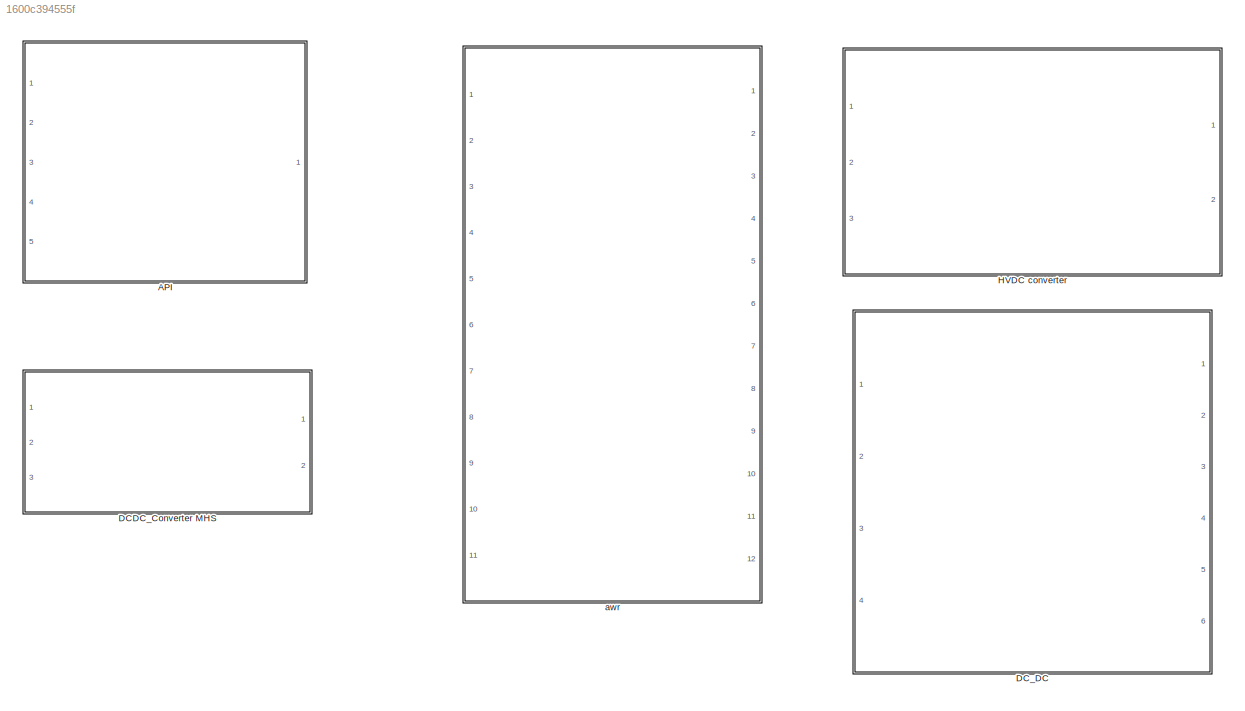
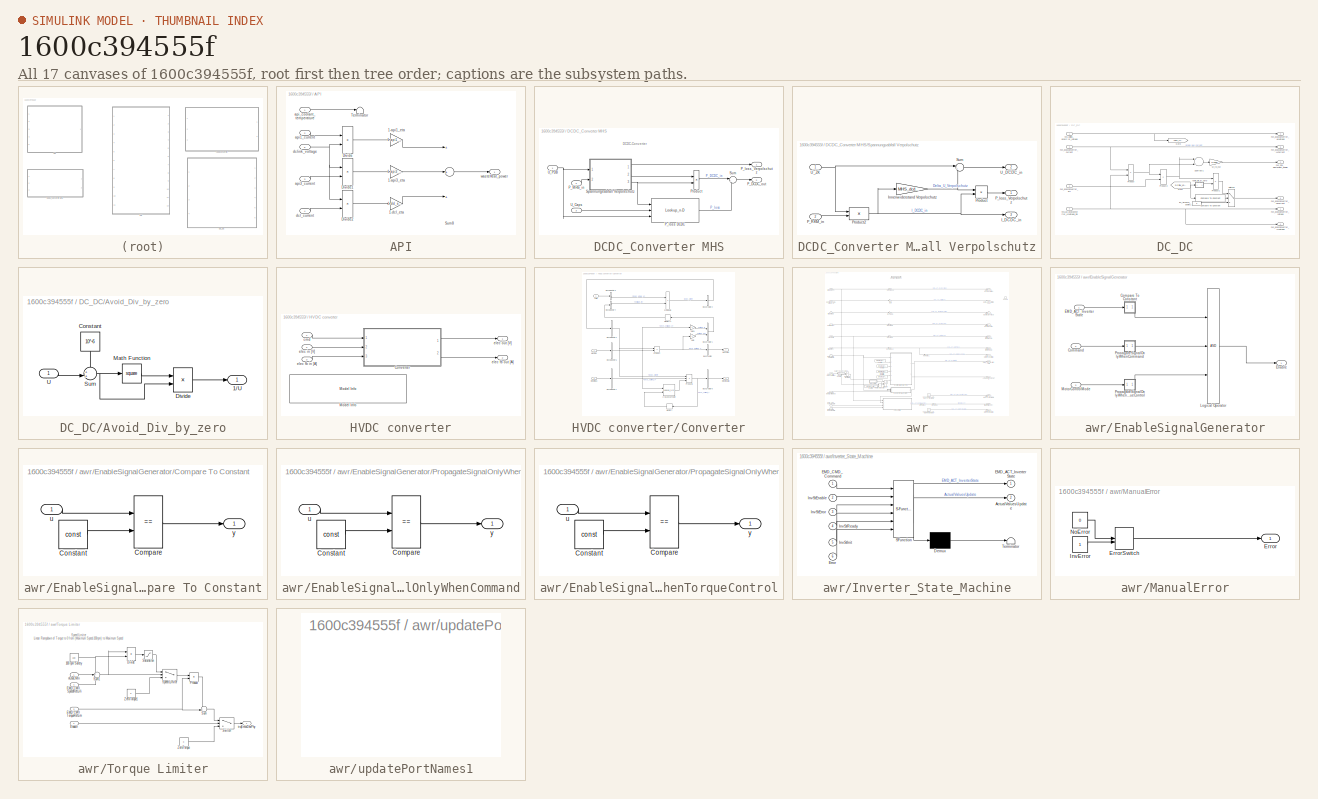
[diagram: thumbnail index - all 17 canvases of the model, root first then tree order]
MODEL slx_1600c394555f
KIND library
CONFIG AbsTol = auto
CONFIG FixedStep = 0.001
CONFIG MaxStep = auto
CONFIG MinStep = auto
CONFIG RelTol = 1e-3
CONFIG SampleTimeConstraint = Unconstrained
CONFIG Solver = ode1
CONFIG SolverMode = Auto
CONFIG SolverName = ode1
CONFIG StartTime = 0.0
CONFIG StopTime = Inf
BLOCK [SubSystem] API
  AncestorBlock = API12_DCL/API1+API3+DCL1
  Ports = [5, 1]
  RequestExecContextInheritance = off
  Variant = off
BLOCK [Gain] API/1-api1_eta
  Gain = 1-api1_eta
  OutDataTypeStr = Inherit: Inherit via internal rule
  ParamDataTypeStr = Inherit: Inherit via internal rule
  SaturateOnIntegerOverflow = off
BLOCK [Gain] API/1-api3_eta
  Gain = 1-api3_eta
  OutDataTypeStr = Inherit: Inherit via internal rule
  ParamDataTypeStr = Inherit: Inherit via internal rule
  SaturateOnIntegerOverflow = off
BLOCK [Gain] API/1-dcl_eta
  Gain = 1-dcl_eta
  OutDataTypeStr = Inherit: Inherit via internal rule
  ParamDataTypeStr = Inherit: Inherit via internal rule
  SaturateOnIntegerOverflow = off
BLOCK [Product] API/Divide
  InputSameDT = off
  Inputs = **
  OutDataTypeStr = Inherit: Inherit via internal rule
  Ports = [2, 1]
  RndMeth = Floor
  SaturateOnIntegerOverflow = off
BLOCK [Product] API/Divide1
  InputSameDT = off
  Inputs = **
  OutDataTypeStr = Inherit: Inherit via internal rule
  Ports = [2, 1]
  RndMeth = Floor
  SaturateOnIntegerOverflow = off
BLOCK [Product] API/Divide2
  InputSameDT = off
  Inputs = **
  OutDataTypeStr = Inherit: Inherit via internal rule
  Ports = [2, 1]
  RndMeth = Floor
  SaturateOnIntegerOverflow = off
BLOCK [Sum] API/Sum8
  Inputs = +++
  Ports = [3, 1]
BLOCK [Terminator] API/Terminator
BLOCK [Inport] API/api1_current
  IconDisplay = Port number
  Port = 2
BLOCK [Inport] API/api3_current
  IconDisplay = Port number
  Port = 3
BLOCK [Inport] API/api_coolant_temperature
  IconDisplay = Port number
BLOCK [Inport] API/dcl_current
  IconDisplay = Port number
  Port = 4
BLOCK [Inport] API/dclink_voltage
  IconDisplay = Port number
  Port = 5
BLOCK [Outport] API/wasteHeat_power
  IconDisplay = Port number
BLOCK [SubSystem] DCDC_Converter MHS
  Ports = [3, 2]
  RequestExecContextInheritance = off
  Variant = off
BLOCK [Outport] DCDC_Converter MHS/P_DCDC_out
  IconDisplay = Port number
  Port = 2
BLOCK [Inport] DCDC_Converter MHS/P_MHS_in
  IconDisplay = Port number
  Port = 2
BLOCK [Lookup_n-D] DCDC_Converter MHS/P_loss DCDC
  BreakpointsForDimension1 = MHS_dcdc_I_ZK
  BreakpointsForDimension2 = MHS_dcdc_U_Cap
  BreakpointsForDimension3 = MHS_dcdc_U_ZK
  NumberOfTableDimensions = 3
  Ports = [3, 1]
  RndMeth = Simplest
  Table = MHS_dcdc_Ploss
BLOCK [Outport] DCDC_Converter MHS/P_loss_Verpolschutz
  IconDisplay = Port number
BLOCK [Product] DCDC_Converter MHS/Product
  InputSameDT = off
  OutDataTypeStr = Inherit: Inherit via internal rule
  Ports = [2, 1]
  SaturateOnIntegerOverflow = off
BLOCK [SubSystem] DCDC_Converter MHS/Spannungsabfall Verpolschutz
  Ports = [2, 3]
  RequestExecContextInheritance = off
  Variant = off
BLOCK [Outport] DCDC_Converter MHS/Spannungsabfall Verpolschutz/I_DCDC_in
  IconDisplay = Port number
  Port = 3
BLOCK [Gain] DCDC_Converter MHS/Spannungsabfall Verpolschutz/Innenwiderstand Verpolschutz
  Gain = MHS_dcdc_Ri_Verpolschutz
  OutDataTypeStr = Inherit: Inherit via internal rule
  ParamDataTypeStr = Inherit: Inherit via internal rule
  SaturateOnIntegerOverflow = off
BLOCK [Inport] DCDC_Converter MHS/Spannungsabfall Verpolschutz/P_RKM_in
  IconDisplay = Port number
  Port = 2
BLOCK [Outport] DCDC_Converter MHS/Spannungsabfall Verpolschutz/P_loss_Verpolschutz
  IconDisplay = Port number
BLOCK [Product] DCDC_Converter MHS/Spannungsabfall Verpolschutz/Product
  InputSameDT = off
  OutDataTypeStr = Inherit: Inherit via internal rule
  Ports = [2, 1]
  SaturateOnIntegerOverflow = off
BLOCK [Product] DCDC_Converter MHS/Spannungsabfall Verpolschutz/Product2
  InputSameDT = off
  Inputs = /*
  OutDataTypeStr = Inherit: Inherit via internal rule
  Ports = [2, 1]
  SaturateOnIntegerOverflow = off
BLOCK [Sum] DCDC_Converter MHS/Spannungsabfall Verpolschutz/Sum
  IconShape = round
  InputSameDT = off
  Inputs = |+-
  OutDataTypeStr = Inherit: Inherit via internal rule
  Ports = [2, 1]
  SaturateOnIntegerOverflow = off
BLOCK [Outport] DCDC_Converter MHS/Spannungsabfall Verpolschutz/U_DCDC_in
  IconDisplay = Port number
  Port = 2
BLOCK [Inport] DCDC_Converter MHS/Spannungsabfall Verpolschutz/U_ZK
  IconDisplay = Port number
BLOCK [Sum] DCDC_Converter MHS/Sum
  IconShape = round
  InputSameDT = off
  Inputs = |+-
  OutDataTypeStr = Inherit: Inherit via internal rule
  Ports = [2, 1]
  SaturateOnIntegerOverflow = off
BLOCK [Inport] DCDC_Converter MHS/U_Caps
  IconDisplay = Port number
  Port = 3
BLOCK [Inport] DCDC_Converter MHS/U_PDB
  IconDisplay = Port number
BLOCK [SubSystem] DC_DC
  Ports = [4, 6]
  RequestExecContextInheritance = off
  Variant = off
BLOCK [SubSystem] DC_DC/Avoid_Div_by_zero
  Ports = [1, 1]
  RequestExecContextInheritance = off
  Variant = off
BLOCK [Outport] DC_DC/Avoid_Div_by_zero/1//U
  IconDisplay = Port number
BLOCK [Constant] DC_DC/Avoid_Div_by_zero/Constant
  Value = 10^-6
BLOCK [Product] DC_DC/Avoid_Div_by_zero/Divide
  InputSameDT = off
  Inputs = /*
  OutDataTypeStr = Inherit: Inherit via internal rule
  Ports = [2, 1]
  RndMeth = Floor
  SaturateOnIntegerOverflow = off
BLOCK [Math] DC_DC/Avoid_Div_by_zero/Math Function
  Operator = square
  Ports = [1, 1]
BLOCK [Sum] DC_DC/Avoid_Div_by_zero/Sum
  IconShape = round
  InputSameDT = off
  Inputs = ++|
  OutDataTypeStr = Inherit: Inherit via internal rule
  Ports = [2, 1]
  SaturateOnIntegerOverflow = off
BLOCK [Inport] DC_DC/Avoid_Div_by_zero/U
  IconDisplay = Port number
BLOCK [Reference] DC_DC/Compare To Constant  REF=simulink/Logic and Bit
Operations/Compare
To Constant
  Ports = [1, 1]
  SourceBlock = simulink/Logic and Bit\nOperations/Compare\nTo Constant
  SourceType = Compare To Constant
BLOCK [From] DC_DC/From
  GotoTag = DClink_voltage
BLOCK [Goto] DC_DC/Goto
  GotoTag = DClink_voltage
BLOCK [Product] DC_DC/Product
  InputSameDT = off
  Inputs = **
  OutDataTypeStr = Inherit: Inherit via internal rule
  Ports = [2, 1]
  SaturateOnIntegerOverflow = off
BLOCK [Product] DC_DC/Product1
  InputSameDT = off
  Inputs = **
  OutDataTypeStr = Inherit: Inherit via internal rule
  Ports = [2, 1]
  SaturateOnIntegerOverflow = off
BLOCK [Product] DC_DC/Product2
  InputSameDT = off
  Inputs = */
  OutDataTypeStr = Inherit: Inherit via internal rule
  Ports = [2, 1]
  SaturateOnIntegerOverflow = off
BLOCK [Sum] DC_DC/Subtract1
  InputSameDT = off
  Inputs = +-
  OutDataTypeStr = Inherit: Inherit via internal rule
  Ports = [2, 1]
  SaturateOnIntegerOverflow = off
BLOCK [Switch] DC_DC/Switch2
  InputSameDT = off
  SaturateOnIntegerOverflow = off
  Threshold = 0.5
BLOCK [Gain] DC_DC/W_to_kW
  AttributesFormatString = %<Description>
  Gain = 1/1000
  OutDataTypeStr = Inherit: Inherit via internal rule
  ParamDataTypeStr = Inherit: Inherit via internal rule
  SaturateOnIntegerOverflow = off
BLOCK [Inport] DC_DC/hvsAux_dcdcConverter_LvVoltage_Rq
  IconDisplay = Port number
  Port = 4
BLOCK [Outport] DC_DC/hvs_DCL_wasteHeat_power
  IconDisplay = Port number
  Port = 2
BLOCK [Inport] DC_DC/hvs_DClink_dcdcConverter_voltage
  IconDisplay = Port number
BLOCK [Outport] DC_DC/hvs_dcdcConverter_HvCurrent
  IconDisplay = Port number
  Port = 5
BLOCK [Outport] DC_DC/hvs_dcdcConverter_HvVoltage
  IconDisplay = Port number
  Port = 3
BLOCK [Outport] DC_DC/hvs_dcdcConverter_LvCurrent
  IconDisplay = Port number
  Port = 6
BLOCK [Outport] DC_DC/hvs_dcdcConverter_LvVoltage
  IconDisplay = Port number
  Port = 4
BLOCK [Inport] DC_DC/hvs_dcdcConverter_current
  IconDisplay = Port number
  Port = 3
BLOCK [Inport] DC_DC/hvs_dcdcConverter_eff
  IconDisplay = Port number
  Port = 2
BLOCK [Outport] DC_DC/hvs_dcdcConverter_voltage
  IconDisplay = Port number
BLOCK [Constant] DC_DC/lvs_Aircomp_power1
  Value = 0
BLOCK [SubSystem] HVDC converter
  Ports = [3, 2]
  RequestExecContextInheritance = off
  Variant = off
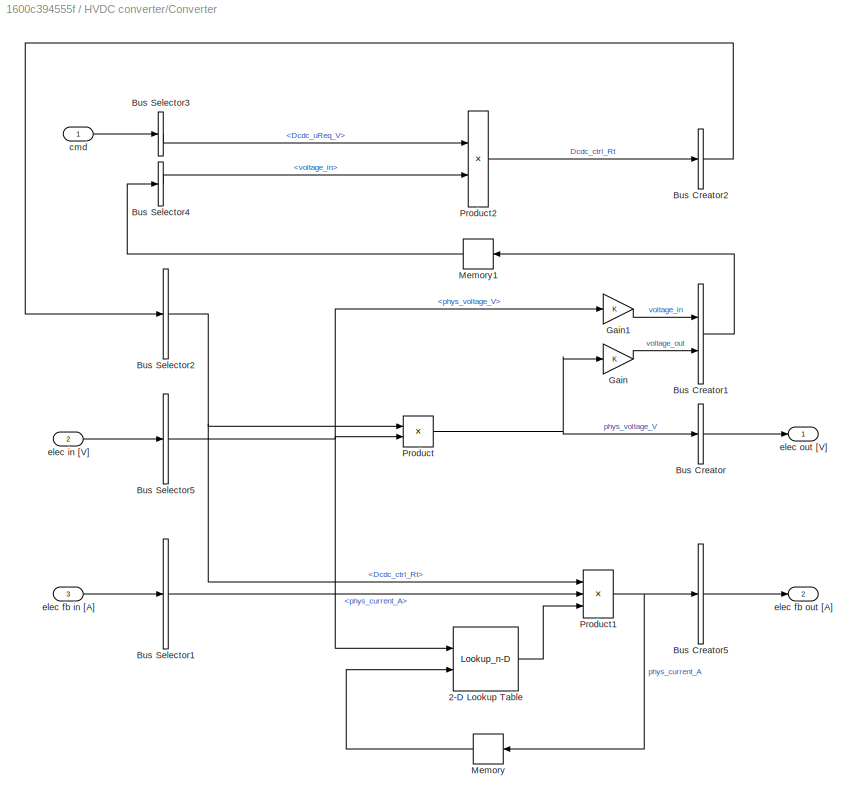
BLOCK [SubSystem] HVDC converter/Converter
  Ports = [3, 2]
  RequestExecContextInheritance = off
  Variant = off
BLOCK [Lookup_n-D] HVDC converter/Converter/2-D Lookup Table
  BreakpointsForDimension1 = dat.elecefficiency.voltage.vec
  BreakpointsForDimension2 = dat.elecefficiency.current.vec
  ExtrapMethod = Clip
  Ports = [2, 1]
  Table = dat.elecefficiency.efficiency.map
  UseLastTableValue = on
BLOCK [BusCreator] HVDC converter/Converter/Bus Creator
  DisplayOption = bar
  InheritFromInputs = on
  Inputs = 1
  Ports = [1, 1]
BLOCK [BusCreator] HVDC converter/Converter/Bus Creator1
  DisplayOption = bar
  InheritFromInputs = on
  Inputs = 2
  Ports = [2, 1]
BLOCK [BusCreator] HVDC converter/Converter/Bus Creator2
  DisplayOption = bar
  InheritFromInputs = on
  Inputs = 1
  Ports = [1, 1]
BLOCK [BusCreator] HVDC converter/Converter/Bus Creator5
  DisplayOption = bar
  InheritFromInputs = on
  Inputs = 1
  Ports = [1, 1]
BLOCK [BusSelector] HVDC converter/Converter/Bus Selector1
  OutputSignals = phys_current_A
  Ports = [1, 1]
BLOCK [BusSelector] HVDC converter/Converter/Bus Selector2
  OutputSignals = Dcdc_ctrl_Rt
  Ports = [1, 1]
BLOCK [BusSelector] HVDC converter/Converter/Bus Selector3
  OutputSignals = Dcdc_uReq_V
  Ports = [1, 1]
BLOCK [BusSelector] HVDC converter/Converter/Bus Selector4
  OutputSignals = voltage_in
  Ports = [1, 1]
BLOCK [BusSelector] HVDC converter/Converter/Bus Selector5
  OutputSignals = phys_voltage_V
  Ports = [1, 1]
BLOCK [Gain] HVDC converter/Converter/Gain
  OutDataTypeStr = Inherit: Inherit via internal rule
  ParamDataTypeStr = Inherit: Inherit via internal rule
  SaturateOnIntegerOverflow = off
BLOCK [Gain] HVDC converter/Converter/Gain1
  OutDataTypeStr = Inherit: Inherit via internal rule
  ParamDataTypeStr = Inherit: Inherit via internal rule
  SaturateOnIntegerOverflow = off
BLOCK [Memory] HVDC converter/Converter/Memory
BLOCK [Memory] HVDC converter/Converter/Memory1
BLOCK [Product] HVDC converter/Converter/Product
  InputSameDT = off
  OutDataTypeStr = Inherit: Inherit via internal rule
  Ports = [2, 1]
  SaturateOnIntegerOverflow = off
BLOCK [Product] HVDC converter/Converter/Product1
  InputSameDT = off
  Inputs = 3
  OutDataTypeStr = Inherit: Inherit via internal rule
  Ports = [3, 1]
  SaturateOnIntegerOverflow = off
BLOCK [Product] HVDC converter/Converter/Product2
  InputSameDT = off
  Inputs = */
  OutDataTypeStr = Inherit: Inherit via internal rule
  Ports = [2, 1]
  SaturateOnIntegerOverflow = off
BLOCK [Inport] HVDC converter/Converter/cmd
  IconDisplay = Port number
BLOCK [Inport] HVDC converter/Converter/elec fb in [A]
  IconDisplay = Port number
  Port = 3
BLOCK [Outport] HVDC converter/Converter/elec fb out [A]
  IconDisplay = Port number
  Port = 2
BLOCK [Inport] HVDC converter/Converter/elec in [V]
  IconDisplay = Port number
  Port = 2
BLOCK [Outport] HVDC converter/Converter/elec out [V]
  IconDisplay = Port number
BLOCK [Reference] HVDC converter/Model Info  REF=simulink/Model-Wide
Utilities/Model Info
  Ports = []
  SourceBlock = simulink/Model-Wide\nUtilities/Model Info
  SourceType = CMBlock
BLOCK [Inport] HVDC converter/cmd
  IconDisplay = Port number
BLOCK [Inport] HVDC converter/elec fb in [A]
  IconDisplay = Port number
  Port = 3
BLOCK [Outport] HVDC converter/elec fb out [A]
  IconDisplay = Port number
  Port = 2
BLOCK [Inport] HVDC converter/elec in [V]
  IconDisplay = Port number
  Port = 2
BLOCK [Outport] HVDC converter/elec out [V]
  IconDisplay = Port number
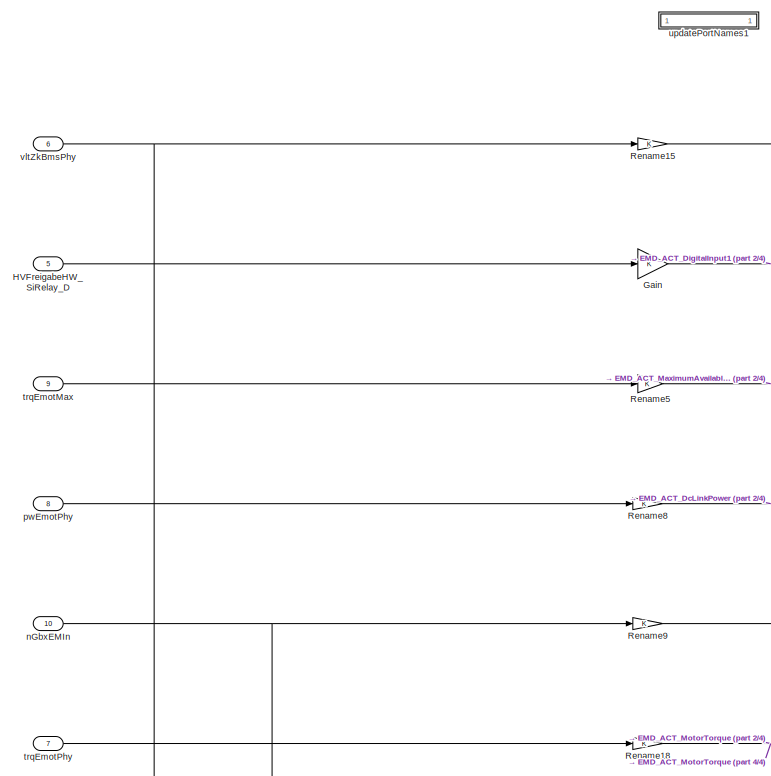
[diagram: awr - part 1/4, top left region]
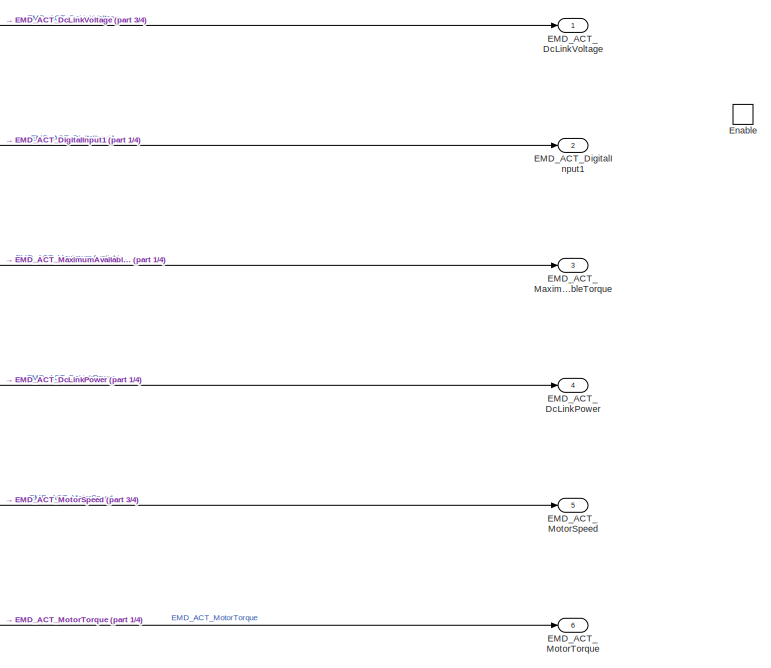
[diagram: awr - part 2/4, top right region]
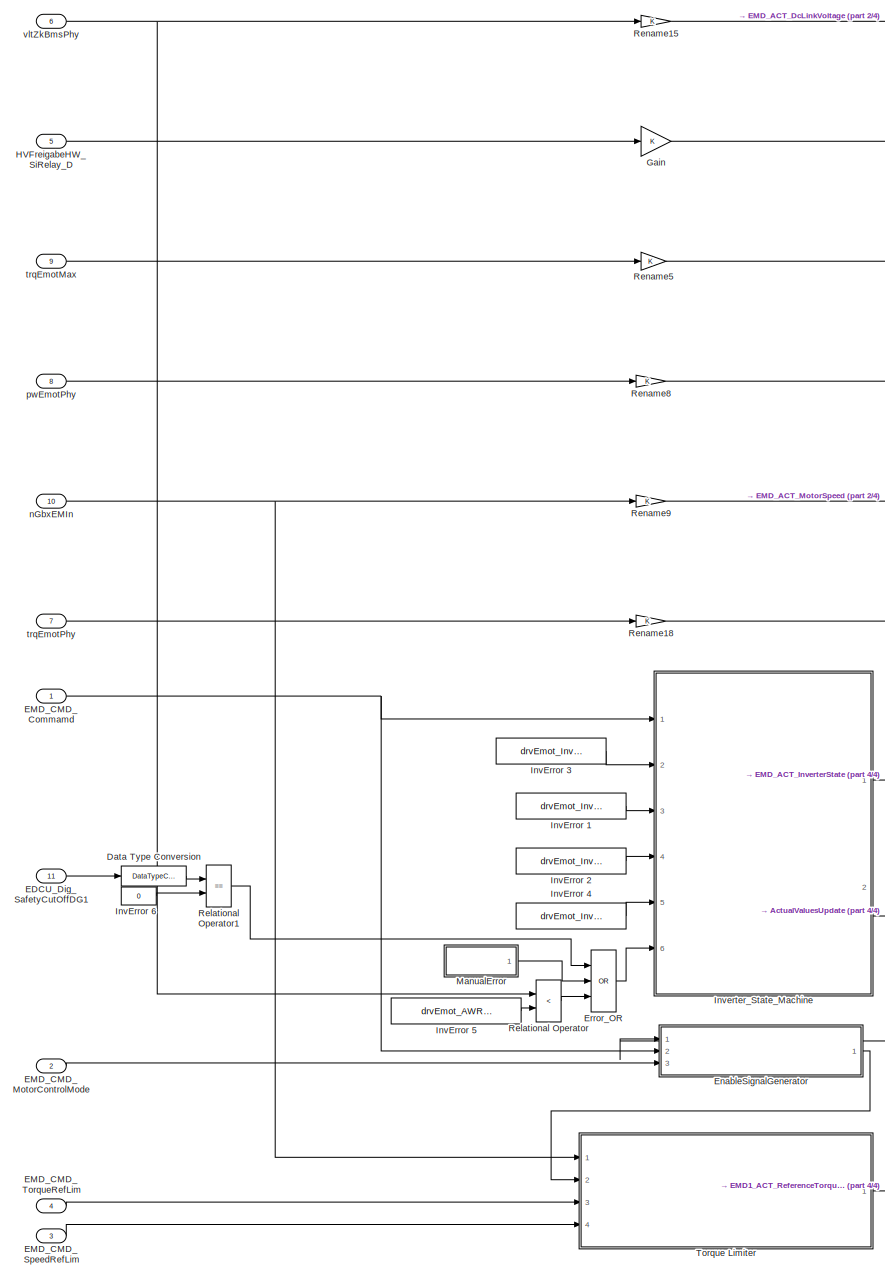
[diagram: awr - part 3/4, left side, full height]
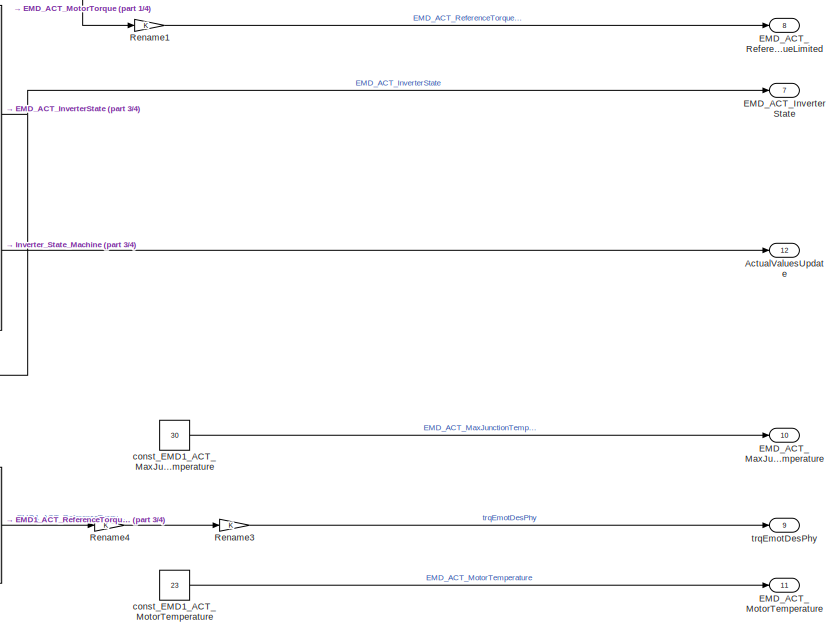
[diagram: awr - part 4/4, bottom right region]
BLOCK [SubSystem] awr
  Ports = [11, 12, 1]
  RequestExecContextInheritance = off
  Variant = off
BLOCK [Outport] awr/ActualValuesUpdate
  IconDisplay = Port number
  Port = 12
BLOCK [DataTypeConversion] awr/Data Type Conversion
  RndMeth = Floor
  SaturateOnIntegerOverflow = off
BLOCK [Inport] awr/EDCU_Dig_SafetyCutOffDG1
  IconDisplay = Port number
  Port = 11
BLOCK [Outport] awr/EMD_ACT_DcLinkPower
  IconDisplay = Port number
  Port = 4
BLOCK [Outport] awr/EMD_ACT_DcLinkVoltage
  IconDisplay = Port number
BLOCK [Outport] awr/EMD_ACT_DigitalInput1
  IconDisplay = Port number
  Port = 2
BLOCK [Outport] awr/EMD_ACT_InverterState
  IconDisplay = Port number
  Port = 7
BLOCK [Outport] awr/EMD_ACT_MaxJunctionTemperature
  IconDisplay = Port number
  Port = 10
BLOCK [Outport] awr/EMD_ACT_MaximumAvailableTorque
  IconDisplay = Port number
  Port = 3
BLOCK [Outport] awr/EMD_ACT_MotorSpeed
  IconDisplay = Port number
  Port = 5
BLOCK [Outport] awr/EMD_ACT_MotorTemperature
  IconDisplay = Port number
  Port = 11
BLOCK [Outport] awr/EMD_ACT_MotorTorque
  IconDisplay = Port number
  Port = 6
BLOCK [Outport] awr/EMD_ACT_ReferenceTorqueLimited
  IconDisplay = Port number
  Port = 8
BLOCK [Inport] awr/EMD_CMD_Commamd
  IconDisplay = Port number
BLOCK [Inport] awr/EMD_CMD_MotorControlMode
  IconDisplay = Port number
  Port = 2
BLOCK [Inport] awr/EMD_CMD_SpeedRefLim
  IconDisplay = Port number
  Port = 3
BLOCK [Inport] awr/EMD_CMD_TorqueRefLim
  IconDisplay = Port number
  Port = 4
BLOCK [EnablePort] awr/Enable
  Ports = []
BLOCK [SubSystem] awr/EnableSignalGenerator
  Ports = [3, 1]
  RequestExecContextInheritance = off
  TreatAsAtomicUnit = on
  Variant = off
BLOCK [Inport] awr/EnableSignalGenerator/Command
  IconDisplay = Port number
  Port = 2
BLOCK [SubSystem] awr/EnableSignalGenerator/Compare To Constant
  Ports = [1, 1]
  RequestExecContextInheritance = off
  Variant = off
BLOCK [RelationalOperator] awr/EnableSignalGenerator/Compare To Constant/Compare
  Operator = ==
  OutDataTypeStr = boolean
  Ports = [2, 1]
BLOCK [Constant] awr/EnableSignalGenerator/Compare To Constant/Constant
  DisableCoverage = on
  OutDataTypeStr = Inherit: Inherit via back propagation
  Value = const
BLOCK [Inport] awr/EnableSignalGenerator/Compare To Constant/u
  IconDisplay = Port number
BLOCK [Outport] awr/EnableSignalGenerator/Compare To Constant/y
  IconDisplay = Port number
BLOCK [Inport] awr/EnableSignalGenerator/EMD_ACT_InverterState
  IconDisplay = Port number
BLOCK [Outport] awr/EnableSignalGenerator/Enable
  IconDisplay = Port number
BLOCK [Logic] awr/EnableSignalGenerator/Logical Operator
  AllPortsSameDT = off
  Inputs = 3
  OutDataTypeStr = boolean
  Ports = [3, 1]
BLOCK [Inport] awr/EnableSignalGenerator/MotorControlMode
  IconDisplay = Port number
  Port = 3
BLOCK [SubSystem] awr/EnableSignalGenerator/PropagateSignalOnlyWhenCommand
  Ports = [1, 1]
  RequestExecContextInheritance = off
  Variant = off
BLOCK [RelationalOperator] awr/EnableSignalGenerator/PropagateSignalOnlyWhenCommand/Compare
  Operator = ==
  OutDataTypeStr = boolean
  Ports = [2, 1]
BLOCK [Constant] awr/EnableSignalGenerator/PropagateSignalOnlyWhenCommand/Constant
  DisableCoverage = on
  OutDataTypeStr = Inherit: Inherit via back propagation
  Value = const
BLOCK [Inport] awr/EnableSignalGenerator/PropagateSignalOnlyWhenCommand/u
  IconDisplay = Port number
BLOCK [Outport] awr/EnableSignalGenerator/PropagateSignalOnlyWhenCommand/y
  IconDisplay = Port number
BLOCK [SubSystem] awr/EnableSignalGenerator/PropagateSignalOnlyWhenTorqueControl
  Ports = [1, 1]
  RequestExecContextInheritance = off
  Variant = off
BLOCK [RelationalOperator] awr/EnableSignalGenerator/PropagateSignalOnlyWhenTorqueControl/Compare
  Operator = ==
  OutDataTypeStr = boolean
  Ports = [2, 1]
BLOCK [Constant] awr/EnableSignalGenerator/PropagateSignalOnlyWhenTorqueControl/Constant
  DisableCoverage = on
  OutDataTypeStr = Inherit: Inherit via back propagation
  Value = const
BLOCK [Inport] awr/EnableSignalGenerator/PropagateSignalOnlyWhenTorqueControl/u
  IconDisplay = Port number
BLOCK [Outport] awr/EnableSignalGenerator/PropagateSignalOnlyWhenTorqueControl/y
  IconDisplay = Port number
BLOCK [Logic] awr/Error_OR
  AllPortsSameDT = off
  Inputs = 3
  Operator = OR
  OutDataTypeStr = boolean
  Ports = [3, 1]
BLOCK [Gain] awr/Gain
  OutDataTypeStr = Inherit: Inherit via internal rule
  ParamDataTypeStr = Inherit: Inherit via internal rule
  SaturateOnIntegerOverflow = off
BLOCK [Inport] awr/HVFreigabeHW_SiRelay_D
  IconDisplay = Port number
  Port = 5
BLOCK [Constant] awr/InvError 1
  Value = drvEmot_InvStError
BLOCK [Constant] awr/InvError 2
  Value = drvEmot_InvStReady
BLOCK [Constant] awr/InvError 3
  Value = drvEmot_InvStEnable
BLOCK [Constant] awr/InvError 4
  Value = drvEmot_InvStInit
BLOCK [Constant] awr/InvError 5
  Value = drvEmot_AWR_InvStError
BLOCK [Constant] awr/InvError 6
  Value = 0
BLOCK [SubSystem] awr/Inverter_State_Machine
  ErrorFcn = Stateflow.Translate.translate
  PermitHierarchicalResolution = ExplicitOnly
  Ports = [6, 2]
  RequestExecContextInheritance = off
  SFBlockType = Chart
  TreatAsAtomicUnit = on
  Variant = off
BLOCK [Demux] awr/Inverter_State_Machine/ Demux 
  Outputs = 1
  Ports = [1, 1]
BLOCK [S-Function] awr/Inverter_State_Machine/ SFunction 
  EnableBusSupport = off
  FunctionName = sf_sfun
  PortCounts = [6 3]
  Ports = [6, 3]
  SFunctionDeploymentMode = off
  Tag = Stateflow S-Function Electrical_converter 4
BLOCK [Terminator] awr/Inverter_State_Machine/ Terminator 
BLOCK [Outport] awr/Inverter_State_Machine/ActualValuesUpdate
  IconDisplay = Port number
  Port = 2
BLOCK [Outport] awr/Inverter_State_Machine/EMD_ACT_InverterState
  IconDisplay = Port number
BLOCK [Inport] awr/Inverter_State_Machine/EMD_CMD_Command
  IconDisplay = Port number
BLOCK [Inport] awr/Inverter_State_Machine/Error
  IconDisplay = Port number
  Port = 6
BLOCK [Inport] awr/Inverter_State_Machine/InvStEnable
  IconDisplay = Port number
  Port = 2
BLOCK [Inport] awr/Inverter_State_Machine/InvStError
  IconDisplay = Port number
  Port = 3
BLOCK [Inport] awr/Inverter_State_Machine/InvStInit
  IconDisplay = Port number
  Port = 5
BLOCK [Inport] awr/Inverter_State_Machine/InvStReady
  IconDisplay = Port number
  Port = 4
BLOCK [SubSystem] awr/ManualError
  Ports = [0, 1]
  RequestExecContextInheritance = off
  TreatAsAtomicUnit = on
  Variant = off
BLOCK [Outport] awr/ManualError/Error
  IconDisplay = Port number
BLOCK [ManualSwitch] awr/ManualError/ErrorSwitch
BLOCK [Constant] awr/ManualError/InvError
BLOCK [Constant] awr/ManualError/NoError
  Value = 0
BLOCK [RelationalOperator] awr/Relational Operator
  InputSameDT = off
  Operator = <
  OutDataTypeStr = boolean
  Ports = [2, 1]
BLOCK [RelationalOperator] awr/Relational Operator1
  InputSameDT = off
  Operator = ==
  OutDataTypeStr = boolean
  Ports = [2, 1]
BLOCK [Gain] awr/Rename1
  OutDataTypeStr = Inherit: Inherit via internal rule
  ParamDataTypeStr = Inherit: Inherit via internal rule
  SaturateOnIntegerOverflow = off
BLOCK [Gain] awr/Rename15
  OutDataTypeStr = Inherit: Inherit via internal rule
  ParamDataTypeStr = Inherit: Inherit via internal rule
  SaturateOnIntegerOverflow = off
BLOCK [Gain] awr/Rename18
  OutDataTypeStr = Inherit: Inherit via internal rule
  ParamDataTypeStr = Inherit: Inherit via internal rule
  SaturateOnIntegerOverflow = off
BLOCK [Gain] awr/Rename3
  OutDataTypeStr = Inherit: Inherit via internal rule
  ParamDataTypeStr = Inherit: Inherit via internal rule
  SaturateOnIntegerOverflow = off
BLOCK [Gain] awr/Rename4
  OutDataTypeStr = Inherit: Inherit via internal rule
  ParamDataTypeStr = Inherit: Inherit via internal rule
  SaturateOnIntegerOverflow = off
BLOCK [Gain] awr/Rename5
  OutDataTypeStr = Inherit: Inherit via internal rule
  ParamDataTypeStr = Inherit: Inherit via internal rule
  SaturateOnIntegerOverflow = off
BLOCK [Gain] awr/Rename8
  OutDataTypeStr = Inherit: Inherit via internal rule
  ParamDataTypeStr = Inherit: Inherit via internal rule
  SaturateOnIntegerOverflow = off
BLOCK [Gain] awr/Rename9
  OutDataTypeStr = Inherit: Inherit via internal rule
  ParamDataTypeStr = Inherit: Inherit via internal rule
  SaturateOnIntegerOverflow = off
BLOCK [SubSystem] awr/Torque Limiter
  Ports = [4, 1]
  RequestExecContextInheritance = off
  TreatAsAtomicUnit = on
  Variant = off
BLOCK [Constant] awr/Torque Limiter/100 rpm Safety
  Value = 100
BLOCK [Product] awr/Torque Limiter/Divide
  InputSameDT = off
  Inputs = */
  OutDataTypeStr = Inherit: Inherit via internal rule
  Ports = [2, 1]
  RndMeth = Floor
  SaturateOnIntegerOverflow = off
BLOCK [Inport] awr/Torque Limiter/EMD_CMD_SpeedRefLim
  IconDisplay = Port number
  Port = 4
BLOCK [Inport] awr/Torque Limiter/EMD_CMD_TorqueRefLim
  IconDisplay = Port number
  Port = 3
BLOCK [Inport] awr/Torque Limiter/Enable
  IconDisplay = Port number
  Port = 2
BLOCK [Product] awr/Torque Limiter/Product
  InputSameDT = off
  OutDataTypeStr = Inherit: Inherit via internal rule
  Ports = [2, 1]
  SaturateOnIntegerOverflow = off
BLOCK [Saturate] awr/Torque Limiter/Saturation
  InputPortMap = u0
  LowerLimit = 0
  Ports = [1, 1]
  UpperLimit = 1
BLOCK [Switch] awr/Torque Limiter/Speed Limiter
  InputSameDT = off
  SaturateOnIntegerOverflow = off
BLOCK [Sum] awr/Torque Limiter/Sum
  IconShape = round
  InputSameDT = off
  Inputs = -+|
  OutDataTypeStr = Inherit: Inherit via internal rule
  Ports = [2, 1]
  SaturateOnIntegerOverflow = off
BLOCK [Sum] awr/Torque Limiter/Sum1
  IconShape = round
  InputSameDT = off
  Inputs = ++-
  OutDataTypeStr = Inherit: Inherit via internal rule
  Ports = [3, 1]
  SaturateOnIntegerOverflow = off
BLOCK [Switch] awr/Torque Limiter/Switch
  InputSameDT = off
  SaturateOnIntegerOverflow = off
  Threshold = 0.5
BLOCK [Constant] awr/Torque Limiter/ZeroTorque
  Value = 0
BLOCK [Constant] awr/Torque Limiter/ZeroTorque1
  Value = 0
BLOCK [Inport] awr/Torque Limiter/nGbxEMIn
  IconDisplay = Port number
BLOCK [Outport] awr/Torque Limiter/trqEmotDesPhy
  IconDisplay = Port number
BLOCK [Constant] awr/const_EMD1_ACT_MaxJunctionTemperature
  Value = 30
BLOCK [Constant] awr/const_EMD1_ACT_MotorTemperature
  Value = 23
BLOCK [Inport] awr/nGbxEMIn
  IconDisplay = Port number
  Port = 10
BLOCK [Inport] awr/pwEmotPhy
  IconDisplay = Port number
  Port = 8
BLOCK [Outport] awr/trqEmotDesPhy
  IconDisplay = Port number
  Port = 9
BLOCK [Inport] awr/trqEmotMax
  IconDisplay = Port number
  Port = 9
BLOCK [Inport] awr/trqEmotPhy
  IconDisplay = Port number
  Port = 7
BLOCK [SubSystem] awr/updatePortNames1
  OpenFcn = std_PortNameFromSignal('Depth',2);
  Ports = []
  RequestExecContextInheritance = off
  Variant = off
BLOCK [Inport] awr/vltZkBmsPhy
  IconDisplay = Port number
  Port = 6
ANNOTATION DCDC_Converter MHS: DCDC-Converter
ANNOTATION awr/Torque Limiter: Speed Limiter Linear Rampdown of Torque to 0 from (Maximum Speed-100rpm) to Maximum Speed
LINE DCDC_Converter MHS/P_MHS_in:1 -> DCDC_Converter MHS/Spannungsabfall Verpolschutz:2
LINE DCDC_Converter MHS/P_loss DCDC:1 -> DCDC_Converter MHS/Sum:2
LINE DCDC_Converter MHS/Product:1 -> DCDC_Converter MHS/Sum:1
NET DCDC_Converter MHS/Spannungsabfall Verpolschutz/Innenwiderstand Verpolschutz:1 -> DCDC_Converter MHS/Spannungsabfall Verpolschutz/Product:1, DCDC_Converter MHS/Spannungsabfall Verpolschutz/Sum:2
LINE DCDC_Converter MHS/Spannungsabfall Verpolschutz/P_RKM_in:1 -> DCDC_Converter MHS/Spannungsabfall Verpolschutz/Product2:2
NET DCDC_Converter MHS/Spannungsabfall Verpolschutz/Product2:1 -> DCDC_Converter MHS/Spannungsabfall Verpolschutz/I_DCDC_in:1, DCDC_Converter MHS/Spannungsabfall Verpolschutz/Innenwiderstand Verpolschutz:1, DCDC_Converter MHS/Spannungsabfall Verpolschutz/Product:2
LINE DCDC_Converter MHS/Spannungsabfall Verpolschutz/Product:1 -> DCDC_Converter MHS/Spannungsabfall Verpolschutz/P_loss_Verpolschutz:1
LINE DCDC_Converter MHS/Spannungsabfall Verpolschutz/Sum:1 -> DCDC_Converter MHS/Spannungsabfall Verpolschutz/U_DCDC_in:1
NET DCDC_Converter MHS/Spannungsabfall Verpolschutz/U_ZK:1 -> DCDC_Converter MHS/Spannungsabfall Verpolschutz/Product2:1, DCDC_Converter MHS/Spannungsabfall Verpolschutz/Sum:1
LINE DCDC_Converter MHS/Spannungsabfall Verpolschutz:1 -> DCDC_Converter MHS/P_loss_Verpolschutz:1
LINE DCDC_Converter MHS/Spannungsabfall Verpolschutz:2 -> DCDC_Converter MHS/Product:1
NET DCDC_Converter MHS/Spannungsabfall Verpolschutz:3 -> DCDC_Converter MHS/P_loss DCDC:1, DCDC_Converter MHS/Product:2
LINE DCDC_Converter MHS/Sum:1 -> DCDC_Converter MHS/P_DCDC_out:1
LINE DCDC_Converter MHS/U_Caps:1 -> DCDC_Converter MHS/P_loss DCDC:2
NET DCDC_Converter MHS/U_PDB:1 -> DCDC_Converter MHS/P_loss DCDC:3, DCDC_Converter MHS/Spannungsabfall Verpolschutz:1
LINE DC_DC/Avoid_Div_by_zero/Constant:1 -> DC_DC/Avoid_Div_by_zero/Sum:1
LINE DC_DC/Avoid_Div_by_zero/Divide:1 -> DC_DC/Avoid_Div_by_zero/1//U:1
LINE DC_DC/Avoid_Div_by_zero/Math Function:1 -> DC_DC/Avoid_Div_by_zero/Divide:1
NET DC_DC/Avoid_Div_by_zero/Sum:1 -> DC_DC/Avoid_Div_by_zero/Divide:2, DC_DC/Avoid_Div_by_zero/Math Function:1
LINE DC_DC/Avoid_Div_by_zero/U:1 -> DC_DC/Avoid_Div_by_zero/Sum:2
LINE DC_DC/Avoid_Div_by_zero:1 -> DC_DC/Product1:2
LINE DC_DC/Compare To Constant:1 -> DC_DC/Switch2:2
NET DC_DC/From:1 -> DC_DC/Avoid_Div_by_zero:1, DC_DC/Compare To Constant:1
LINE DC_DC/Product1:1 -> DC_DC/Switch2:1
NET DC_DC/Product2:1 -> DC_DC/Product1:1, DC_DC/Subtract1:1
NET DC_DC/Product:1 -> DC_DC/Product2:1, DC_DC/Subtract1:2
LINE DC_DC/Subtract1:1 -> DC_DC/W_to_kW:1
LINE DC_DC/Switch2:1 -> DC_DC/hvs_dcdcConverter_HvCurrent:1
LINE DC_DC/W_to_kW:1 -> DC_DC/hvs_DCL_wasteHeat_power:1
NET DC_DC/hvsAux_dcdcConverter_LvVoltage_Rq:1 -> DC_DC/Product:2, DC_DC/hvs_dcdcConverter_LvVoltage:1, DC_DC/hvs_dcdcConverter_voltage:1
NET DC_DC/hvs_DClink_dcdcConverter_voltage:1 -> DC_DC/Goto:1, DC_DC/hvs_dcdcConverter_HvVoltage:1
NET DC_DC/hvs_dcdcConverter_current:1 -> DC_DC/Product:1, DC_DC/hvs_dcdcConverter_LvCurrent:1
LINE DC_DC/hvs_dcdcConverter_eff:1 -> DC_DC/Product2:2
LINE DC_DC/lvs_Aircomp_power1:1 -> DC_DC/Switch2:3
LINE HVDC converter/Converter/2-D Lookup Table:1 -> HVDC converter/Converter/Product1:3
LINE HVDC converter/Converter/Bus Creator1:1 -> HVDC converter/Converter/Memory1:1
LINE HVDC converter/Converter/Bus Creator2:1 -> HVDC converter/Converter/Bus Selector2:1
LINE HVDC converter/Converter/Bus Creator5:1 -> HVDC converter/Converter/elec fb out [A]:1
LINE HVDC converter/Converter/Bus Creator:1 -> HVDC converter/Converter/elec out [V]:1
LINE HVDC converter/Converter/Bus Selector1:1 -> HVDC converter/Converter/Product1:2
NET HVDC converter/Converter/Bus Selector2:1 -> HVDC converter/Converter/Product1:1, HVDC converter/Converter/Product:1
LINE HVDC converter/Converter/Bus Selector3:1 -> HVDC converter/Converter/Product2:1
LINE HVDC converter/Converter/Bus Selector4:1 -> HVDC converter/Converter/Product2:2
NET HVDC converter/Converter/Bus Selector5:1 -> HVDC converter/Converter/2-D Lookup Table:1, HVDC converter/Converter/Gain1:1, HVDC converter/Converter/Product:2
LINE HVDC converter/Converter/Gain1:1 -> HVDC converter/Converter/Bus Creator1:1
LINE HVDC converter/Converter/Gain:1 -> HVDC converter/Converter/Bus Creator1:2
LINE HVDC converter/Converter/Memory1:1 -> HVDC converter/Converter/Bus Selector4:1
LINE HVDC converter/Converter/Memory:1 -> HVDC converter/Converter/2-D Lookup Table:2
NET HVDC converter/Converter/Product1:1 -> HVDC converter/Converter/Bus Creator5:1, HVDC converter/Converter/Memory:1
LINE HVDC converter/Converter/Product2:1 -> HVDC converter/Converter/Bus Creator2:1
NET HVDC converter/Converter/Product:1 -> HVDC converter/Converter/Bus Creator:1, HVDC converter/Converter/Gain:1
LINE HVDC converter/Converter/cmd:1 -> HVDC converter/Converter/Bus Selector3:1
LINE HVDC converter/Converter/elec fb in [A]:1 -> HVDC converter/Converter/Bus Selector1:1
LINE HVDC converter/Converter/elec in [V]:1 -> HVDC converter/Converter/Bus Selector5:1
LINE HVDC converter/Converter:1 -> HVDC converter/elec out [V]:1
LINE HVDC converter/Converter:2 -> HVDC converter/elec fb out [A]:1
LINE HVDC converter/cmd:1 -> HVDC converter/Converter:1
LINE HVDC converter/elec fb in [A]:1 -> HVDC converter/Converter:3
LINE HVDC converter/elec in [V]:1 -> HVDC converter/Converter:2
LINE awr/Data Type Conversion:1 -> awr/Relational Operator1:1
LINE awr/EDCU_Dig_SafetyCutOffDG1:1 -> awr/Data Type Conversion:1
NET awr/EMD_CMD_Commamd:1 -> awr/EnableSignalGenerator:2, awr/Inverter_State_Machine:1
LINE awr/EMD_CMD_MotorControlMode:1 -> awr/EnableSignalGenerator:3
LINE awr/EMD_CMD_SpeedRefLim:1 -> awr/Torque Limiter:4
LINE awr/EMD_CMD_TorqueRefLim:1 -> awr/Torque Limiter:3
LINE awr/EnableSignalGenerator/Command:1 -> awr/EnableSignalGenerator/PropagateSignalOnlyWhenCommand:1
LINE awr/EnableSignalGenerator/Compare To Constant:1 -> awr/EnableSignalGenerator/Logical Operator:1
LINE awr/EnableSignalGenerator/EMD_ACT_InverterState:1 -> awr/EnableSignalGenerator/Compare To Constant:1
LINE awr/EnableSignalGenerator/Logical Operator:1 -> awr/EnableSignalGenerator/Enable:1
LINE awr/EnableSignalGenerator/MotorControlMode:1 -> awr/EnableSignalGenerator/PropagateSignalOnlyWhenTorqueControl:1
LINE awr/EnableSignalGenerator/PropagateSignalOnlyWhenCommand:1 -> awr/EnableSignalGenerator/Logical Operator:2
LINE awr/EnableSignalGenerator/PropagateSignalOnlyWhenTorqueControl:1 -> awr/EnableSignalGenerator/Logical Operator:3
LINE awr/EnableSignalGenerator:1 -> awr/Torque Limiter:2
LINE awr/Error_OR:1 -> awr/Inverter_State_Machine:6
LINE awr/Gain:1 -> awr/EMD_ACT_DigitalInput1:1
LINE awr/HVFreigabeHW_SiRelay_D:1 -> awr/Gain:1
LINE awr/InvError 1:1 -> awr/Inverter_State_Machine:3
LINE awr/InvError 2:1 -> awr/Inverter_State_Machine:4
LINE awr/InvError 3:1 -> awr/Inverter_State_Machine:2
LINE awr/InvError 4:1 -> awr/Inverter_State_Machine:5
LINE awr/InvError 5:1 -> awr/Relational Operator:2
LINE awr/InvError 6:1 -> awr/Relational Operator1:2
NET awr/Inverter_State_Machine:1 -> awr/EMD_ACT_InverterState:1, awr/EnableSignalGenerator:1
LINE awr/Inverter_State_Machine:2 -> awr/ActualValuesUpdate:1
LINE awr/ManualError/ErrorSwitch:1 -> awr/ManualError/Error:1
LINE awr/ManualError/InvError:1 -> awr/ManualError/ErrorSwitch:2
LINE awr/ManualError/NoError:1 -> awr/ManualError/ErrorSwitch:1
LINE awr/ManualError:1 -> awr/Error_OR:2
LINE awr/Relational Operator1:1 -> awr/Error_OR:1
LINE awr/Relational Operator:1 -> awr/Error_OR:3
LINE awr/Rename15:1 -> awr/EMD_ACT_DcLinkVoltage:1
NET awr/Rename18:1 -> awr/EMD_ACT_MotorTorque:1, awr/Rename1:1
LINE awr/Rename1:1 -> awr/EMD_ACT_ReferenceTorqueLimited:1
LINE awr/Rename3:1 -> awr/trqEmotDesPhy:1
LINE awr/Rename4:1 -> awr/Rename3:1
LINE awr/Rename5:1 -> awr/EMD_ACT_MaximumAvailableTorque:1
LINE awr/Rename8:1 -> awr/EMD_ACT_DcLinkPower:1
LINE awr/Rename9:1 -> awr/EMD_ACT_MotorSpeed:1
NET awr/Torque Limiter/100 rpm Safety:1 -> awr/Torque Limiter/Divide:2, awr/Torque Limiter/Sum1:1
LINE awr/Torque Limiter/Divide:1 -> awr/Torque Limiter/Saturation:1
LINE awr/Torque Limiter/EMD_CMD_SpeedRefLim:1 -> awr/Torque Limiter/Sum1:3
NET awr/Torque Limiter/EMD_CMD_TorqueRefLim:1 -> awr/Torque Limiter/Product:2, awr/Torque Limiter/Sum:2
LINE awr/Torque Limiter/Enable:1 -> awr/Torque Limiter/Switch:2
LINE awr/Torque Limiter/Product:1 -> awr/Torque Limiter/Sum:1
LINE awr/Torque Limiter/Saturation:1 -> awr/Torque Limiter/Speed Limiter:1
LINE awr/Torque Limiter/Speed Limiter:1 -> awr/Torque Limiter/Product:1
NET awr/Torque Limiter/Sum1:1 -> awr/Torque Limiter/Divide:1, awr/Torque Limiter/Speed Limiter:2
LINE awr/Torque Limiter/Sum:1 -> awr/Torque Limiter/Switch:1
LINE awr/Torque Limiter/Switch:1 -> awr/Torque Limiter/trqEmotDesPhy:1
LINE awr/Torque Limiter/ZeroTorque1:1 -> awr/Torque Limiter/Speed Limiter:3
LINE awr/Torque Limiter/ZeroTorque:1 -> awr/Torque Limiter/Switch:3
LINE awr/Torque Limiter/nGbxEMIn:1 -> awr/Torque Limiter/Sum1:2
LINE awr/Torque Limiter:1 -> awr/Rename4:1
LINE awr/const_EMD1_ACT_MaxJunctionTemperature:1 -> awr/EMD_ACT_MaxJunctionTemperature:1
LINE awr/const_EMD1_ACT_MotorTemperature:1 -> awr/EMD_ACT_MotorTemperature:1
NET awr/nGbxEMIn:1 -> awr/Rename9:1, awr/Torque Limiter:1
LINE awr/pwEmotPhy:1 -> awr/Rename8:1
LINE awr/trqEmotMax:1 -> awr/Rename5:1
LINE awr/trqEmotPhy:1 -> awr/Rename18:1
NET awr/vltZkBmsPhy:1 -> awr/Relational Operator:1, awr/Rename15:1
note: NET lines group one-source signal fan-out (src -> all destinations, sorted); 1:1 wires keep LINE
CHART awr/Inverter_State_Machine states=4 transitions=8
  STATE_LABEL 'Initialization\nen:\nEMD_ACT_InverterState = InvStInit;\nActualValuesUpdate = 0;'
  STATE_LABEL 'Ready\nen:\nEMD_ACT_InverterState = InvStReady;\nActualValuesUpdate = 1;'
  STATE_LABEL 'Error\nen:\nEMD_ACT_InverterState = InvStError;\nActualValuesUpdate = 1;'
  STATE_LABEL 'Enable\nen:\nEMD_ACT_InverterState = InvStEnable;\nActualValuesUpdate = 1;'
